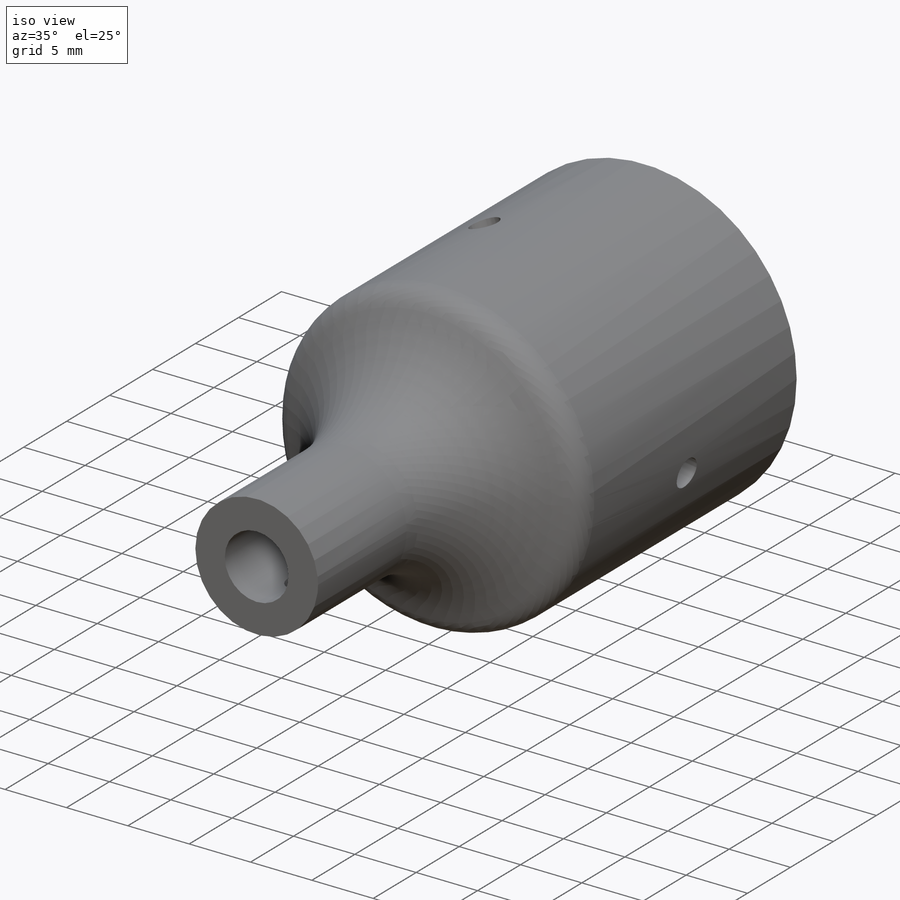
[diagram: iso view]
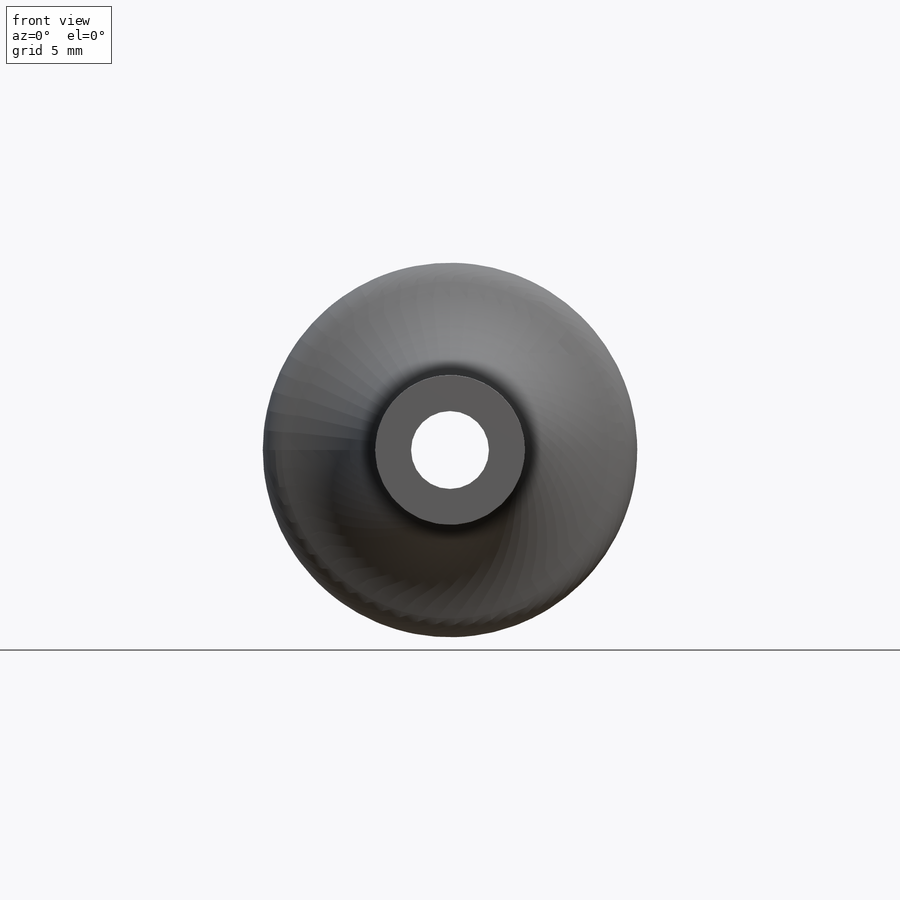
[diagram: front view]
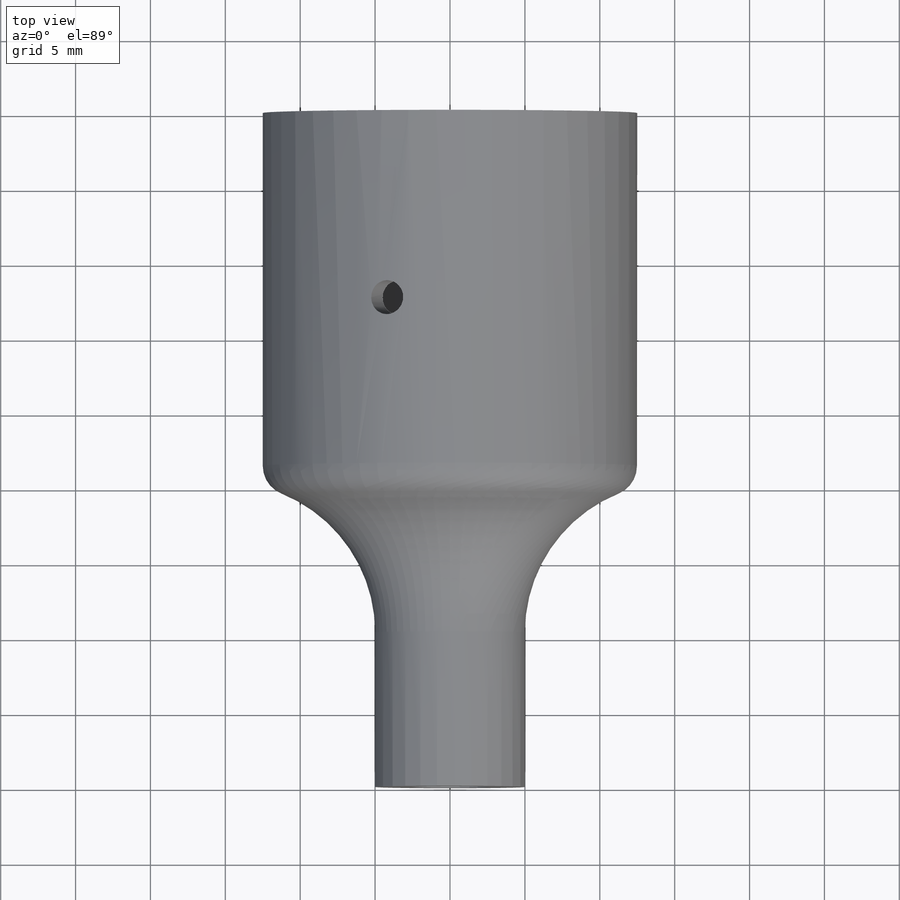
[diagram: top view]
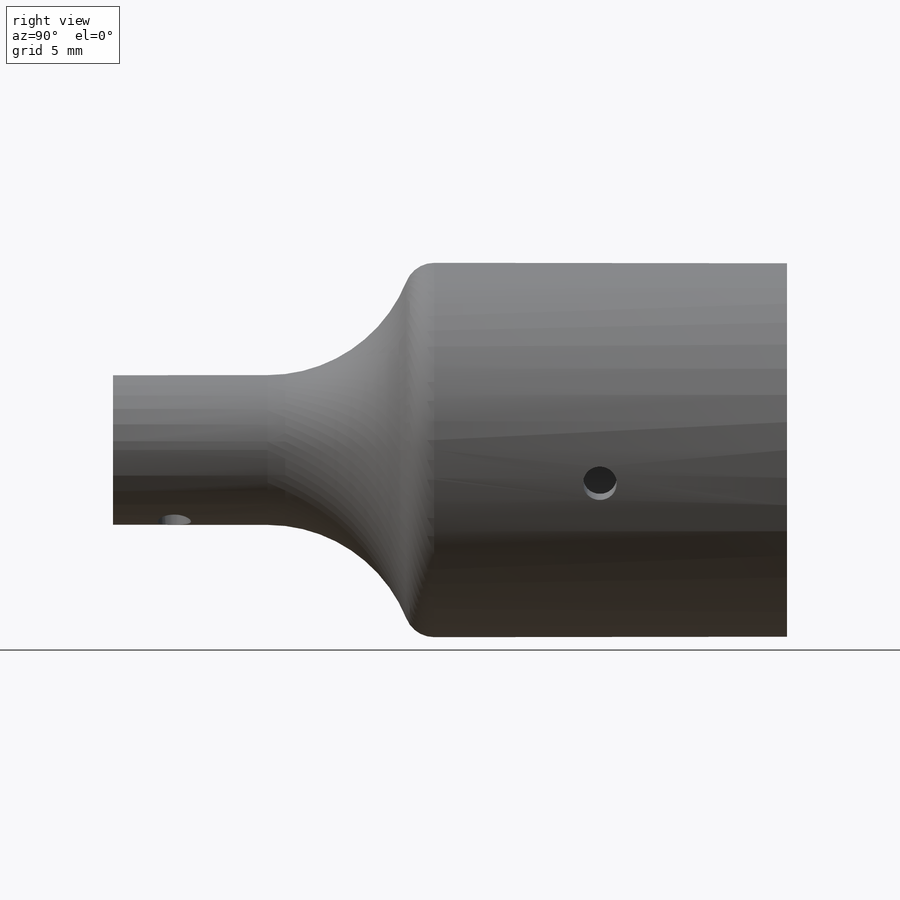
[diagram: right view]
SOLIDWORKS PART (.sldprt)
format: sldprt  version: not decoded by parser v0  size: 289,280 bytes
history: native  units: mm
features: sketch x10, extrude x2, cut_extrude x2, hole x2, fillet x2, chamfer x2, material x1, pattern_circular x1 (+16 scaffold rows collapsed)
feature tree (38):
  scaffold x16  (default folders/planes/origin — collapsed)
  material  "Material <not specified>"
  sketch  "Sketch1"  dims[D1=25.0mm]
  extrude  "Boss-Extrude3"  Depth=25mm
  sketch  "Sketch2"  dims[D1=10.0mm]
  extrude  "Boss-Extrude4"  Depth=20mm
  sketch  "Sketch3"  dims[D1=5.2mm]
  cut_extrude  "Cut-Extrude1"  [1 undecoded]
  sketch  "Sketch4"  dims[D1=20.5mm]
  cut_extrude  "Cut-Extrude3"  Depth=15mm
  sketch  "3DSketch1"
  sketch  "3DSketch2"
  hole  "#4-40 Tapped Hole3"  Diameter=2.2606mm Depth=25mm
  sketch  "3DSketch6"  dims[D1=12.5mm]
  sketch  "Sketch12"  dims[hole-wizard template sketch: 60 standard entries collapsed; hole parameters kept: c18.Thru Tap Drill Depth=25.0mm]
  pattern_circular  "CirPattern1"  Count=3 Angle=120deg
  fillet  "Fillet1"  Radius=10mm
  fillet  "Fillet2"  Radius=2mm
  chamfer  "Chamfer3"  Distance=3mm Angle=30deg
  chamfer  "Chamfer5"  Distance=1.5mm Angle=40deg
  hole  "#4-40 Tapped Hole4"  Diameter=2.2606mm Depth=2.4mm
  sketch  "3DSketch7"  dims[D1=~38.139207mm]
  sketch  "Sketch13"  dims[hole-wizard template sketch: 60 standard entries collapsed; hole parameters kept: c18.Thru Tap Drill Depth=2.4mm]
decode coverage: 18 of 21 modeling features carry decoded parameters
note: ~ marks probable driven/reference dimensions
note: 1 parameter value undecoded
note: suppression state not decoded; provenance and decode notes live in map.json
